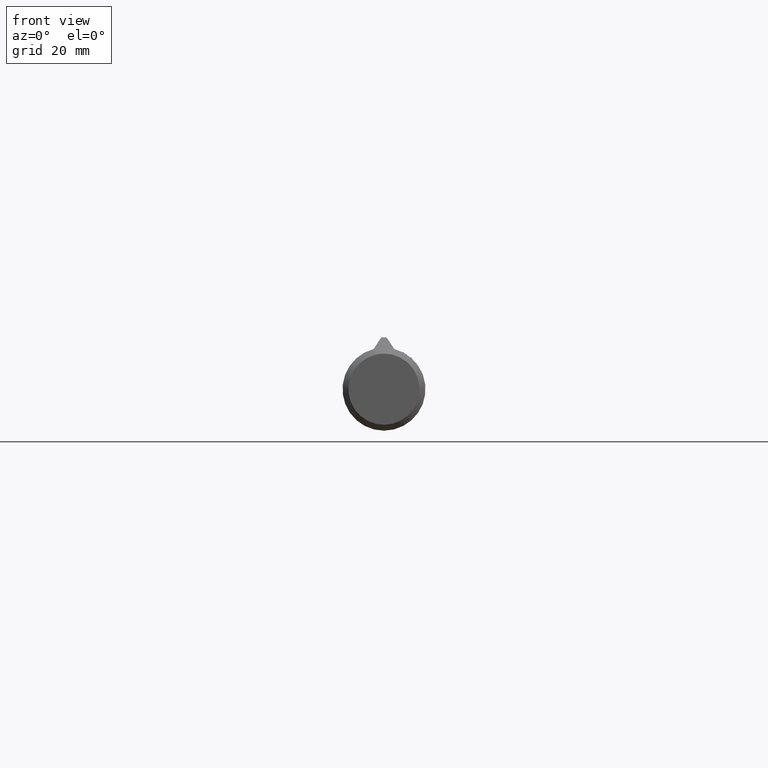
[diagram: clean part render]
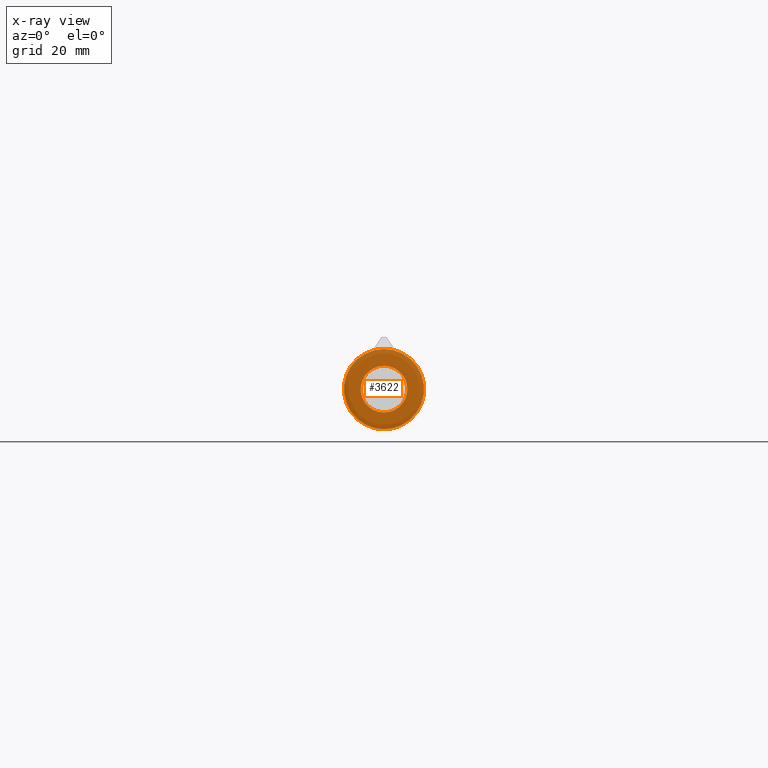
[diagram: x-ray — body ghosted, one internal face saturated and labeled with its STEP entity id]
A machine part, front view, then the same camera in x-ray: the body is ghosted and one INTERNAL B-rep face — a face not visible from any outside direction — is saturated and labeled: STEP entity #3622.
In plain terms, the highlighted planar face has unit normal (-0, 1, 0).
Its self-contained STEP definition (entity closure, byte-faithful):
#132 = DIRECTION ( 'NONE',  ( -2.886579864025390439E-15, -1.000000000000000000, 0.000000000000000000 ) ) ;
#783 = VERTEX_POINT ( 'NONE', #9579 ) ;
#1163 = FACE_OUTER_BOUND ( 'NONE', #6683, .T. ) ;
#3622 = ADVANCED_FACE ( 'NONE', ( #14421, #1163 ), #10116, .T. ) ;
#4003 = AXIS2_PLACEMENT_3D ( 'NONE', #9082, #4981, #12814 ) ;
#4981 = DIRECTION ( 'NONE',  ( 2.886579864025390439E-15, 1.000000000000000000, 0.000000000000000000 ) ) ;
#6683 = EDGE_LOOP ( 'NONE', ( #7286 ) ) ;
#7286 = ORIENTED_EDGE ( 'NONE', *, *, #12497, .F. ) ;
#7477 = AXIS2_PLACEMENT_3D ( 'NONE', #11445, #13829, #16361 ) ;
#7900 = CIRCLE ( 'NONE', #12578, 7.745966692414834043 ) ;
#8020 = EDGE_CURVE ( 'NONE', #783, #783, #14755, .T. ) ;
#9082 = CARTESIAN_POINT ( 'NONE',  ( 1.977307206857414906E-13, 68.50000000000072475, 0.000000000000000000 ) ) ;
#9579 = CARTESIAN_POINT ( 'NONE',  ( 1.977307206857414906E-13, 68.50000000000072475, 4.500000000000000000 ) ) ;
#9610 = DIRECTION ( 'NONE',  ( 0.000000000000000000, 0.000000000000000000, -1.000000000000000000 ) ) ;
#10116 = PLANE ( 'NONE',  #7477 ) ;
#11445 = CARTESIAN_POINT ( 'NONE',  ( 1.977307206857414906E-13, 68.50000000000072475, 0.000000000000000000 ) ) ;
#12252 = CARTESIAN_POINT ( 'NONE',  ( 1.977307206857414906E-13, 68.50000000000072475, 0.000000000000000000 ) ) ;
#12497 = EDGE_CURVE ( 'NONE', #12875, #12875, #7900, .T. ) ;
#12578 = AXIS2_PLACEMENT_3D ( 'NONE', #12252, #132, #9610 ) ;
#12814 = DIRECTION ( 'NONE',  ( 0.000000000000000000, 0.000000000000000000, 1.000000000000000000 ) ) ;
#12875 = VERTEX_POINT ( 'NONE', #16117 ) ;
#13829 = DIRECTION ( 'NONE',  ( 2.886579864025390439E-15, 1.000000000000000000, -0.000000000000000000 ) ) ;
#14421 = FACE_BOUND ( 'NONE', #16624, .T. ) ;
#14755 = CIRCLE ( 'NONE', #4003, 4.500000000000000000 ) ;
#16117 = CARTESIAN_POINT ( 'NONE',  ( 1.977307206857414906E-13, 68.50000000000072475, -7.745966692414834043 ) ) ;
#16313 = ORIENTED_EDGE ( 'NONE', *, *, #8020, .F. ) ;
#16361 = DIRECTION ( 'NONE',  ( 0.000000000000000000, 0.000000000000000000, 1.000000000000000000 ) ) ;
#16624 = EDGE_LOOP ( 'NONE', ( #16313 ) ) ;